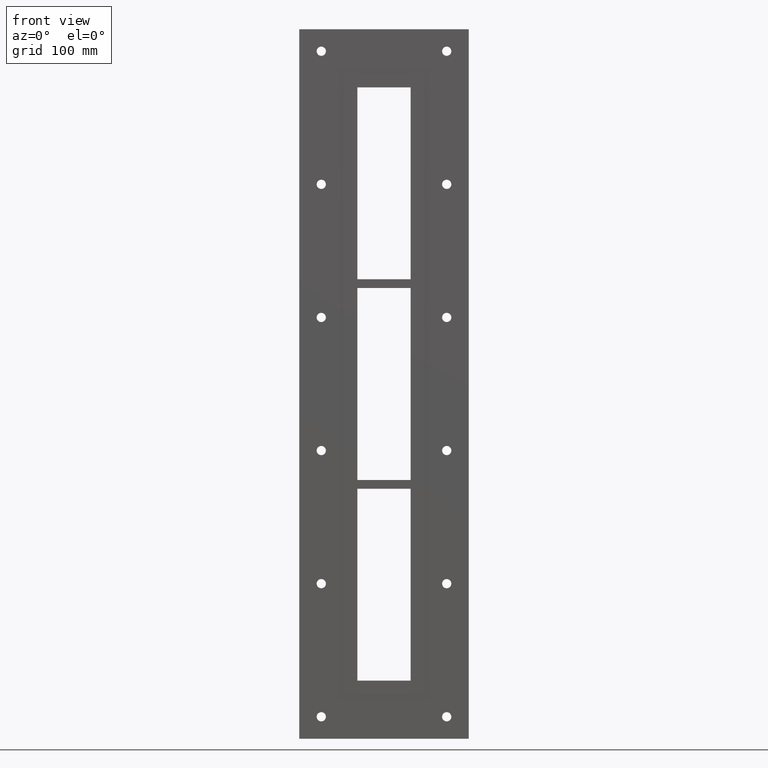
[diagram: clean part render]
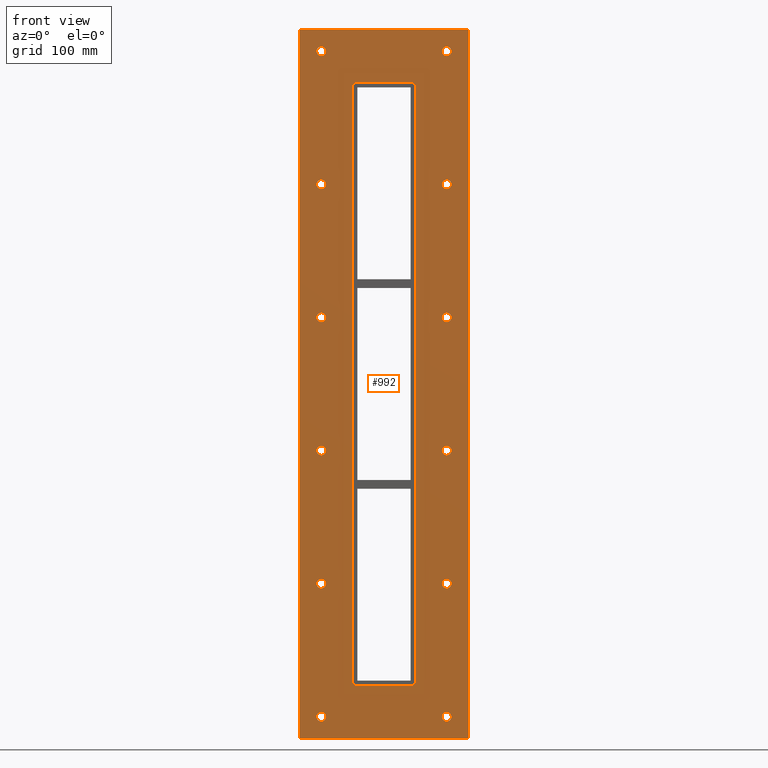
[diagram: same view with one face highlighted and labeled with its STEP entity id]
A machine part, front view. The second image highlights one B-rep face of the part: STEP entity #992.
In plain terms, the highlighted planar face has unit normal (0, 1, 0).
Its self-contained STEP definition (entity closure, byte-faithful):
#84=CARTESIAN_POINT('',(-66.000000000000085,0.0,-378.00000000000006));
#85=VERTEX_POINT('',#84);
#86=CARTESIAN_POINT('',(-71.250000000000085,0.0,-378.00000000000006));
#87=DIRECTION('',(0.0,1.0,0.0));
#88=DIRECTION('',(1.0,0.0,0.0));
#89=AXIS2_PLACEMENT_3D('',#86,#87,#88);
#90=CIRCLE('',#89,5.25);
#91=EDGE_CURVE('',#85,#85,#90,.T.);
#112=CARTESIAN_POINT('',(76.499999999999915,0.0,-226.80000000000007));
#113=VERTEX_POINT('',#112);
#114=CARTESIAN_POINT('',(71.249999999999915,0.0,-226.80000000000007));
#115=DIRECTION('',(0.0,1.0,0.0));
#116=DIRECTION('',(1.0,0.0,0.0));
#117=AXIS2_PLACEMENT_3D('',#114,#115,#116);
#118=CIRCLE('',#117,5.25);
#119=EDGE_CURVE('',#113,#113,#118,.T.);
#140=CARTESIAN_POINT('',(-66.000000000000085,0.0,-226.80000000000007));
#141=VERTEX_POINT('',#140);
#142=CARTESIAN_POINT('',(-71.250000000000085,0.0,-226.80000000000007));
#143=DIRECTION('',(0.0,1.0,0.0));
#144=DIRECTION('',(1.0,0.0,0.0));
#145=AXIS2_PLACEMENT_3D('',#142,#143,#144);
#146=CIRCLE('',#145,5.25);
#147=EDGE_CURVE('',#141,#141,#146,.T.);
#168=CARTESIAN_POINT('',(76.499999999999915,0.0,-75.600000000000108));
#169=VERTEX_POINT('',#168);
#170=CARTESIAN_POINT('',(71.249999999999915,0.0,-75.600000000000108));
#171=DIRECTION('',(0.0,1.0,0.0));
#172=DIRECTION('',(1.0,0.0,0.0));
#173=AXIS2_PLACEMENT_3D('',#170,#171,#172);
#174=CIRCLE('',#173,5.25);
#175=EDGE_CURVE('',#169,#169,#174,.T.);
#196=CARTESIAN_POINT('',(-66.000000000000085,0.0,-75.600000000000108));
#197=VERTEX_POINT('',#196);
#198=CARTESIAN_POINT('',(-71.250000000000085,0.0,-75.600000000000108));
#199=DIRECTION('',(0.0,1.0,0.0));
#200=DIRECTION('',(1.0,0.0,0.0));
#201=AXIS2_PLACEMENT_3D('',#198,#199,#200);
#202=CIRCLE('',#201,5.25);
#203=EDGE_CURVE('',#197,#197,#202,.T.);
#224=CARTESIAN_POINT('',(76.499999999999915,0.0,75.599999999999937));
#225=VERTEX_POINT('',#224);
#226=CARTESIAN_POINT('',(71.249999999999915,0.0,75.599999999999937));
#227=DIRECTION('',(0.0,1.0,0.0));
#228=DIRECTION('',(1.0,0.0,0.0));
#229=AXIS2_PLACEMENT_3D('',#226,#227,#228);
#230=CIRCLE('',#229,5.25);
#231=EDGE_CURVE('',#225,#225,#230,.T.);
#252=CARTESIAN_POINT('',(-66.000000000000085,0.0,75.599999999999937));
#253=VERTEX_POINT('',#252);
#254=CARTESIAN_POINT('',(-71.250000000000085,0.0,75.599999999999937));
#255=DIRECTION('',(0.0,1.0,0.0));
#256=DIRECTION('',(1.0,0.0,0.0));
#257=AXIS2_PLACEMENT_3D('',#254,#255,#256);
#258=CIRCLE('',#257,5.25);
#259=EDGE_CURVE('',#253,#253,#258,.T.);
#280=CARTESIAN_POINT('',(76.499999999999915,0.0,226.79999999999993));
#281=VERTEX_POINT('',#280);
#282=CARTESIAN_POINT('',(71.249999999999915,0.0,226.79999999999993));
#283=DIRECTION('',(0.0,1.0,0.0));
#284=DIRECTION('',(1.0,0.0,0.0));
#285=AXIS2_PLACEMENT_3D('',#282,#283,#284);
#286=CIRCLE('',#285,5.25);
#287=EDGE_CURVE('',#281,#281,#286,.T.);
#308=CARTESIAN_POINT('',(-66.000000000000085,0.0,226.79999999999993));
#309=VERTEX_POINT('',#308);
#310=CARTESIAN_POINT('',(-71.250000000000085,0.0,226.79999999999993));
#311=DIRECTION('',(0.0,1.0,0.0));
#312=DIRECTION('',(1.0,0.0,0.0));
#313=AXIS2_PLACEMENT_3D('',#310,#311,#312);
#314=CIRCLE('',#313,5.25);
#315=EDGE_CURVE('',#309,#309,#314,.T.);
#336=CARTESIAN_POINT('',(76.499999999999915,0.0,-378.00000000000006));
#337=VERTEX_POINT('',#336);
#338=CARTESIAN_POINT('',(71.249999999999915,0.0,-378.00000000000006));
#339=DIRECTION('',(0.0,1.0,0.0));
#340=DIRECTION('',(1.0,0.0,0.0));
#341=AXIS2_PLACEMENT_3D('',#338,#339,#340);
#342=CIRCLE('',#341,5.25);
#343=EDGE_CURVE('',#337,#337,#342,.T.);
#364=CARTESIAN_POINT('',(-66.000000000000085,0.0,377.99999999999989));
#365=VERTEX_POINT('',#364);
#366=CARTESIAN_POINT('',(-71.250000000000085,0.0,377.99999999999989));
#367=DIRECTION('',(0.0,1.0,0.0));
#368=DIRECTION('',(1.0,0.0,0.0));
#369=AXIS2_PLACEMENT_3D('',#366,#367,#368);
#370=CIRCLE('',#369,5.25);
#371=EDGE_CURVE('',#365,#365,#370,.T.);
#392=CARTESIAN_POINT('',(76.499999999999915,0.0,377.99999999999989));
#393=VERTEX_POINT('',#392);
#394=CARTESIAN_POINT('',(71.249999999999915,0.0,377.99999999999989));
#395=DIRECTION('',(0.0,1.0,0.0));
#396=DIRECTION('',(1.0,0.0,0.0));
#397=AXIS2_PLACEMENT_3D('',#394,#395,#396);
#398=CIRCLE('',#397,5.25);
#399=EDGE_CURVE('',#393,#393,#398,.T.);
#847=CARTESIAN_POINT('',(0.0,0.0,0.0));
#848=DIRECTION('',(0.0,1.0,0.0));
#849=DIRECTION('',(0.0,0.0,1.0));
#850=AXIS2_PLACEMENT_3D('',#847,#848,#849);
#851=PLANE('',#850);
#852=CARTESIAN_POINT('',(-96.249999999999986,0.0,403.00000000000006));
#853=VERTEX_POINT('',#852);
#854=CARTESIAN_POINT('',(96.249999999999986,0.0,403.00000000000006));
#855=VERTEX_POINT('',#854);
#856=CARTESIAN_POINT('',(-96.249999999999986,0.0,403.00000000000006));
#857=DIRECTION('',(1.0,0.0,0.0));
#858=VECTOR('',#857,192.49999999999997);
#859=LINE('',#856,#858);
#860=EDGE_CURVE('',#853,#855,#859,.T.);
#861=ORIENTED_EDGE('',*,*,#860,.F.);
#862=CARTESIAN_POINT('',(-96.249999999999986,0.0,-403.00000000000006));
#863=VERTEX_POINT('',#862);
#864=CARTESIAN_POINT('',(-96.249999999999986,0.0,-403.00000000000006));
#865=DIRECTION('',(0.0,0.0,1.0));
#866=VECTOR('',#865,806.00000000000011);
#867=LINE('',#864,#866);
#868=EDGE_CURVE('',#863,#853,#867,.T.);
#869=ORIENTED_EDGE('',*,*,#868,.F.);
#870=CARTESIAN_POINT('',(96.249999999999986,0.0,-403.00000000000006));
#871=VERTEX_POINT('',#870);
#872=CARTESIAN_POINT('',(96.249999999999986,0.0,-403.00000000000006));
#873=DIRECTION('',(-1.0,0.0,0.0));
#874=VECTOR('',#873,192.49999999999997);
#875=LINE('',#872,#874);
#876=EDGE_CURVE('',#871,#863,#875,.T.);
#877=ORIENTED_EDGE('',*,*,#876,.F.);
#878=CARTESIAN_POINT('',(96.249999999999986,0.0,403.00000000000006));
#879=DIRECTION('',(0.0,0.0,-1.0));
#880=VECTOR('',#879,806.00000000000011);
#881=LINE('',#878,#880);
#882=EDGE_CURVE('',#855,#871,#881,.T.);
#883=ORIENTED_EDGE('',*,*,#882,.F.);
#884=EDGE_LOOP('',(#861,#869,#877,#883));
#885=FACE_OUTER_BOUND('',#884,.T.);
#886=ORIENTED_EDGE('',*,*,#91,.T.);
#887=EDGE_LOOP('',(#886));
#888=FACE_BOUND('',#887,.T.);
#889=ORIENTED_EDGE('',*,*,#119,.T.);
#890=EDGE_LOOP('',(#889));
#891=FACE_BOUND('',#890,.T.);
#892=ORIENTED_EDGE('',*,*,#147,.T.);
#893=EDGE_LOOP('',(#892));
#894=FACE_BOUND('',#893,.T.);
#895=ORIENTED_EDGE('',*,*,#175,.T.);
#896=EDGE_LOOP('',(#895));
#897=FACE_BOUND('',#896,.T.);
#898=ORIENTED_EDGE('',*,*,#203,.T.);
#899=EDGE_LOOP('',(#898));
#900=FACE_BOUND('',#899,.T.);
#901=ORIENTED_EDGE('',*,*,#231,.T.);
#902=EDGE_LOOP('',(#901));
#903=FACE_BOUND('',#902,.T.);
#904=ORIENTED_EDGE('',*,*,#259,.T.);
#905=EDGE_LOOP('',(#904));
#906=FACE_BOUND('',#905,.T.);
#907=ORIENTED_EDGE('',*,*,#287,.T.);
#908=EDGE_LOOP('',(#907));
#909=FACE_BOUND('',#908,.T.);
#910=ORIENTED_EDGE('',*,*,#315,.T.);
#911=EDGE_LOOP('',(#910));
#912=FACE_BOUND('',#911,.T.);
#913=ORIENTED_EDGE('',*,*,#343,.T.);
#914=EDGE_LOOP('',(#913));
#915=FACE_BOUND('',#914,.T.);
#916=ORIENTED_EDGE('',*,*,#371,.T.);
#917=EDGE_LOOP('',(#916));
#918=FACE_BOUND('',#917,.T.);
#919=ORIENTED_EDGE('',*,*,#399,.T.);
#920=EDGE_LOOP('',(#919));
#921=FACE_BOUND('',#920,.T.);
#922=CARTESIAN_POINT('',(-30.250000000000004,0.0,343.00000000000006));
#923=VERTEX_POINT('',#922);
#924=CARTESIAN_POINT('',(-36.25,0.0,337.0));
#925=VERTEX_POINT('',#924);
#926=CARTESIAN_POINT('',(-30.250000000000004,0.0,337.0));
#927=DIRECTION('',(0.0,-1.0,0.0));
#928=DIRECTION('',(-0.707106781186551,0.0,0.707106781186544));
#929=AXIS2_PLACEMENT_3D('',#926,#927,#928);
#930=CIRCLE('',#929,6.0);
#931=EDGE_CURVE('',#923,#925,#930,.T.);
#932=ORIENTED_EDGE('',*,*,#931,.F.);
#933=CARTESIAN_POINT('',(30.250000000000004,0.0,343.00000000000006));
#934=VERTEX_POINT('',#933);
#935=CARTESIAN_POINT('',(30.25,0.0,343.00000000000006));
#936=DIRECTION('',(-1.0,0.0,0.0));
#937=VECTOR('',#936,60.5);
#938=LINE('',#935,#937);
#939=EDGE_CURVE('',#934,#923,#938,.T.);
#940=ORIENTED_EDGE('',*,*,#939,.F.);
#941=CARTESIAN_POINT('',(36.25,0.0,337.0));
#942=VERTEX_POINT('',#941);
#943=CARTESIAN_POINT('',(30.250000000000004,0.0,337.0));
#944=DIRECTION('',(0.0,-1.0,0.0));
#945=DIRECTION('',(0.707106781186551,0.0,0.707106781186544));
#946=AXIS2_PLACEMENT_3D('',#943,#944,#945);
#947=CIRCLE('',#946,6.0);
#948=EDGE_CURVE('',#942,#934,#947,.T.);
#949=ORIENTED_EDGE('',*,*,#948,.F.);
#950=CARTESIAN_POINT('',(36.25,0.0,-337.0));
#951=VERTEX_POINT('',#950);
#952=CARTESIAN_POINT('',(36.25,0.0,-337.00000000000011));
#953=DIRECTION('',(0.0,0.0,1.0));
#954=VECTOR('',#953,674.00000000000011);
#955=LINE('',#952,#954);
#956=EDGE_CURVE('',#951,#942,#955,.T.);
#957=ORIENTED_EDGE('',*,*,#956,.F.);
#958=CARTESIAN_POINT('',(30.250000000000004,0.0,-343.00000000000006));
#959=VERTEX_POINT('',#958);
#960=CARTESIAN_POINT('',(30.250000000000004,0.0,-337.0));
#961=DIRECTION('',(0.0,-1.0,0.0));
#962=DIRECTION('',(0.707106781186551,0.0,-0.707106781186544));
#963=AXIS2_PLACEMENT_3D('',#960,#961,#962);
#964=CIRCLE('',#963,6.0);
#965=EDGE_CURVE('',#959,#951,#964,.T.);
#966=ORIENTED_EDGE('',*,*,#965,.F.);
#967=CARTESIAN_POINT('',(-30.250000000000004,0.0,-343.00000000000006));
#968=VERTEX_POINT('',#967);
#969=CARTESIAN_POINT('',(-30.25,0.0,-343.00000000000006));
#970=DIRECTION('',(1.0,0.0,0.0));
#971=VECTOR('',#970,60.5);
#972=LINE('',#969,#971);
#973=EDGE_CURVE('',#968,#959,#972,.T.);
#974=ORIENTED_EDGE('',*,*,#973,.F.);
#975=CARTESIAN_POINT('',(-36.25,0.0,-337.0));
#976=VERTEX_POINT('',#975);
#977=CARTESIAN_POINT('',(-30.250000000000004,0.0,-337.0));
#978=DIRECTION('',(0.0,-1.0,0.0));
#979=DIRECTION('',(-0.707106781186551,0.0,-0.707106781186544));
#980=AXIS2_PLACEMENT_3D('',#977,#978,#979);
#981=CIRCLE('',#980,6.0);
#982=EDGE_CURVE('',#976,#968,#981,.T.);
#983=ORIENTED_EDGE('',*,*,#982,.F.);
#984=CARTESIAN_POINT('',(-36.25,0.0,337.00000000000011));
#985=DIRECTION('',(0.0,0.0,-1.0));
#986=VECTOR('',#985,674.00000000000011);
#987=LINE('',#984,#986);
#988=EDGE_CURVE('',#925,#976,#987,.T.);
#989=ORIENTED_EDGE('',*,*,#988,.F.);
#990=EDGE_LOOP('',(#932,#940,#949,#957,#966,#974,#983,#989));
#991=FACE_BOUND('',#990,.T.);
#992=ADVANCED_FACE('',(#885,#888,#891,#894,#897,#900,#903,#906,#909,#912,#915,#918,#921,#991),#851,.F.);